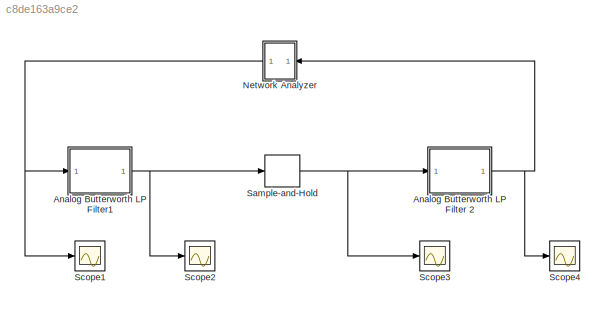
MODEL slx_c8de163a9ce2
KIND model
CONFIG AbsTol = 1e-6
CONFIG FixedStep = auto
CONFIG MaxStep = .005
CONFIG MinStep = auto
CONFIG RelTol = 1e-6
CONFIG SampleTimeConstraint = Unconstrained
CONFIG Solver = ode45
CONFIG SolverMode = SingleTasking
CONFIG SolverName = ode45
CONFIG StartTime = 0.0
CONFIG StopTime = 9999.0
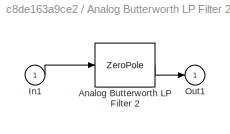
BLOCK [SubSystem] Analog Butterworth LP Filter 2
  Ports = [1, 1]
  RequestExecContextInheritance = off
  Variant = off
BLOCK [ZeroPole] Analog Butterworth LP Filter 2/Analog Butterworth LP Filter 2
  Gain = k
  Poles = p
  Zeros = z
BLOCK [Inport] Analog Butterworth LP Filter 2/In1
  IconDisplay = Port number
BLOCK [Outport] Analog Butterworth LP Filter 2/Out1
  IconDisplay = Port number
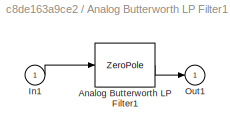
BLOCK [SubSystem] Analog Butterworth LP Filter1
  Ports = [1, 1]
  RequestExecContextInheritance = off
  Variant = off
BLOCK [ZeroPole] Analog Butterworth LP Filter1/Analog Butterworth LP Filter1
  Gain = k
  Poles = p
  Zeros = z
BLOCK [Inport] Analog Butterworth LP Filter1/In1
  IconDisplay = Port number
BLOCK [Outport] Analog Butterworth LP Filter1/Out1
  IconDisplay = Port number
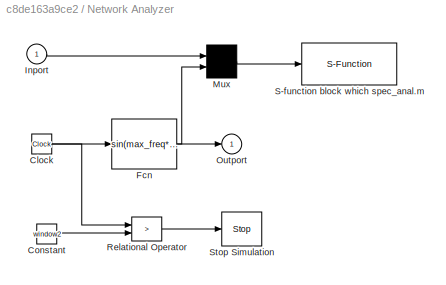
BLOCK [SubSystem] Network Analyzer
  Ports = [1, 1]
  RequestExecContextInheritance = off
  ShowPortLabels = none
  Variant = off
BLOCK [Clock] Network Analyzer/Clock
BLOCK [Constant] Network Analyzer/Constant
  Value = window2
BLOCK [Fcn] Network Analyzer/Fcn
  Expr = sin(max_freq*u*u/(2*window1))*(0.54+0.46*cos(pi*u/window1))*(u<window1)
BLOCK [Inport] Network Analyzer/Inport
  IconDisplay = Port number
BLOCK [Mux] Network Analyzer/Mux
  Inputs = 2
  Ports = [2, 1]
BLOCK [Outport] Network Analyzer/Outport
  IconDisplay = Port number
  InitialOutput = 0
BLOCK [RelationalOperator] Network Analyzer/Relational Operator
  Operator = >
  Ports = [2, 1]
BLOCK [S-Function] Network Analyzer/S-function block which spec_anal.m
  EnableBusSupport = off
  FunctionName = NetAnal
  Parameters = N,T_s
  Ports = [1]
  SFunctionDeploymentMode = off
BLOCK [Stop] Network Analyzer/Stop Simulation
BLOCK [ZeroOrderHold] Sample-and-Hold
BLOCK [Scope] Scope1
  Ports = [1]
  ScopeSpecificationString = Simulink.scopes.TimeScopeBlockCfg('CurrentConfiguration', extmgr.ConfigurationSet(extmgr.Configuration('Core','General UI',true),extmgr.Configuration('Core','Source UI',true),extmgr.Configuration('Sources','WiredSimulink',true,'DataLoggingSaveFormat','Array','DataLoggingDecimation','1','DataLoggingDecimateData',true),extmgr.Configuration('Visuals','Time Domain',true,'TimeAxisLabels','All','Seriali...<+1672ch>
BLOCK [Scope] Scope2
  Ports = [1]
  ScopeSpecificationString = Simulink.scopes.TimeScopeBlockCfg('CurrentConfiguration', extmgr.ConfigurationSet(extmgr.Configuration('Core','General UI',true),extmgr.Configuration('Core','Source UI',true),extmgr.Configuration('Sources','WiredSimulink',true,'DataLoggingSaveFormat','Array','DataLoggingDecimation','1','DataLoggingDecimateData',true),extmgr.Configuration('Visuals','Time Domain',true,'TimeAxisLabels','All','Seriali...<+1685ch>
BLOCK [Scope] Scope3
  Ports = [1]
  ScopeSpecificationString = Simulink.scopes.TimeScopeBlockCfg('CurrentConfiguration', extmgr.ConfigurationSet(extmgr.Configuration('Core','General UI',true),extmgr.Configuration('Core','Source UI',true),extmgr.Configuration('Sources','WiredSimulink',true,'DataLoggingSaveFormat','Array','DataLoggingDecimation','1','DataLoggingDecimateData',true),extmgr.Configuration('Visuals','Time Domain',true,'TimeAxisLabels','All','Seriali...<+1667ch>
BLOCK [Scope] Scope4
  Ports = [1]
  ScopeSpecificationString = Simulink.scopes.TimeScopeBlockCfg('CurrentConfiguration', extmgr.ConfigurationSet(extmgr.Configuration('Core','General UI',true),extmgr.Configuration('Core','Source UI',true),extmgr.Configuration('Sources','WiredSimulink',true,'DataLoggingSaveFormat','Array','DataLoggingDecimation','1','DataLoggingDecimateData',true),extmgr.Configuration('Visuals','Time Domain',true,'TimeAxisLabels','All','Seriali...<+1688ch>
LINE Analog Butterworth LP Filter 2/Analog Butterworth LP Filter 2:1 -> Analog Butterworth LP Filter 2/Out1:1
LINE Analog Butterworth LP Filter 2/In1:1 -> Analog Butterworth LP Filter 2/Analog Butterworth LP Filter 2:1
NET Analog Butterworth LP Filter 2:1 -> Network Analyzer:1, Scope4:1
LINE Analog Butterworth LP Filter1/Analog Butterworth LP Filter1:1 -> Analog Butterworth LP Filter1/Out1:1
LINE Analog Butterworth LP Filter1/In1:1 -> Analog Butterworth LP Filter1/Analog Butterworth LP Filter1:1
NET Analog Butterworth LP Filter1:1 -> Sample-and-Hold:1, Scope2:1
NET Network Analyzer/Clock:1 -> Network Analyzer/Fcn:1, Network Analyzer/Relational Operator:1
LINE Network Analyzer/Constant:1 -> Network Analyzer/Relational Operator:2
NET Network Analyzer/Fcn:1 -> Network Analyzer/Mux:2, Network Analyzer/Outport:1
LINE Network Analyzer/Inport:1 -> Network Analyzer/Mux:1
LINE Network Analyzer/Mux:1 -> Network Analyzer/S-function block which spec_anal.m:1
LINE Network Analyzer/Relational Operator:1 -> Network Analyzer/Stop Simulation:1
NET Network Analyzer:1 -> Analog Butterworth LP Filter1:1, Scope1:1
NET Sample-and-Hold:1 -> Analog Butterworth LP Filter 2:1, Scope3:1
note: NET lines group one-source signal fan-out (src -> all destinations, sorted); 1:1 wires keep LINE
